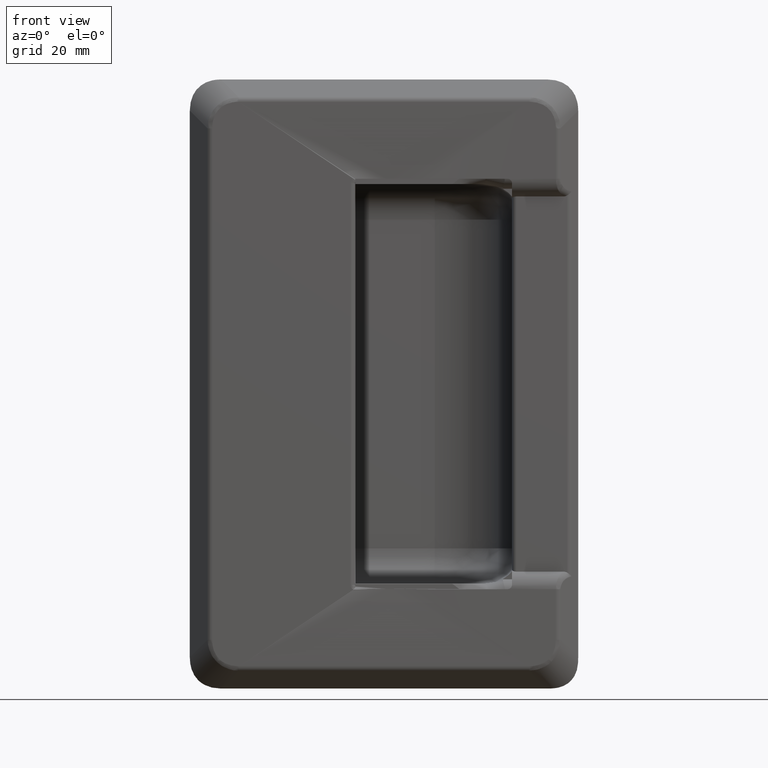
[diagram: clean part render]
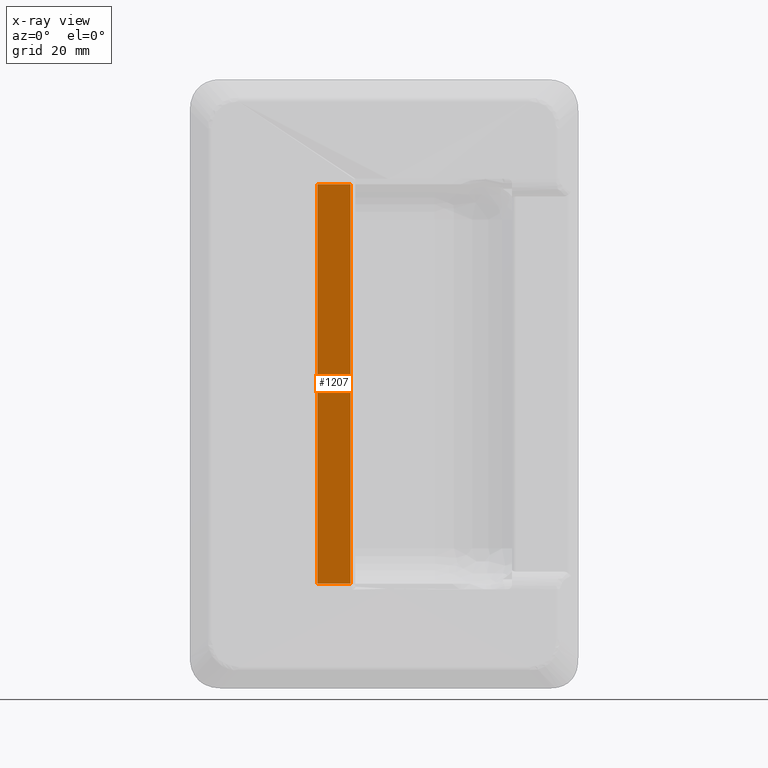
[diagram: x-ray — body ghosted, one internal face saturated and labeled with its STEP entity id]
A machine part, front view, then the same camera in x-ray: the body is ghosted and one INTERNAL B-rep face — a face not visible from any outside direction — is saturated and labeled: STEP entity #1207.
In plain terms, the highlighted planar face has unit normal (0, -1, 0).
Its self-contained STEP definition (entity closure, byte-faithful):
#1207=ADVANCED_FACE('',(#6365),#6364,.F.);
#6364=PLANE('',#10186);
#6365=FACE_OUTER_BOUND('',#10187,.T.);
#10183=CARTESIAN_POINT('',(-1.58535982507E+01,2.56000000000E+00,-5.43000000000E+01));
#10184=DIRECTION('',(0.00000000000E+00,-1.00000000000E+00,0.00000000000E+00));
#10185=DIRECTION('',(1.00000000000E+00,0.00000000000E+00,0.00000000000E+00));
#10186=AXIS2_PLACEMENT_3D('',#10183,#10184,#10185);
#10187=EDGE_LOOP('',(#13798,#13799,#13800,#13801));
#13798=ORIENTED_EDGE('',*,*,#15416,.T.);
#13799=ORIENTED_EDGE('',*,*,#15417,.T.);
#13800=ORIENTED_EDGE('',*,*,#15418,.T.);
#13801=ORIENTED_EDGE('',*,*,#15419,.T.);
#15416=EDGE_CURVE('',#23591,#23592,#23593,.T.);
#15417=EDGE_CURVE('',#23592,#23599,#23600,.T.);
#15418=EDGE_CURVE('',#23599,#23606,#23607,.T.);
#15419=EDGE_CURVE('',#23606,#23591,#23613,.T.);
#23591=VERTEX_POINT('',#30511);
#23592=VERTEX_POINT('',#30512);
#23593=LINE('',#30513,#30514);
#23599=VERTEX_POINT('',#30516);
#23600=LINE('',#30517,#30518);
#23606=VERTEX_POINT('',#30520);
#23607=LINE('',#30521,#30522);
#23613=LINE('',#30524,#30525);
#30511=CARTESIAN_POINT('',(-1.50987256825E+01,2.56000000000E+00,4.52500000000E+01));
#30512=CARTESIAN_POINT('',(-7.55000000042E+00,2.56000000000E+00,4.52500000000E+01));
#30513=CARTESIAN_POINT('',(-1.50987256825E+01,2.56000000000E+00,4.52500000000E+01));
#30514=VECTOR('',#30515,7.54872568210E+00);
#30515=DIRECTION('',(1.00000000000E+00,0.00000000000E+00,0.00000000000E+00));
#30516=CARTESIAN_POINT('',(-7.55000000042E+00,2.56000000000E+00,-4.52500000000E+01));
#30517=CARTESIAN_POINT('',(-7.55000000042E+00,2.56000000000E+00,4.52500000000E+01));
#30518=VECTOR('',#30519,9.05000000000E+01);
#30519=DIRECTION('',(0.00000000000E+00,0.00000000000E+00,-1.00000000000E+00));
#30520=CARTESIAN_POINT('',(-1.50987256825E+01,2.56000000000E+00,-4.52500000000E+01));
#30521=CARTESIAN_POINT('',(-7.55000000042E+00,2.56000000000E+00,-4.52500000000E+01));
#30522=VECTOR('',#30523,7.54872568210E+00);
#30523=DIRECTION('',(-1.00000000000E+00,0.00000000000E+00,0.00000000000E+00));
#30524=CARTESIAN_POINT('',(-1.50987256825E+01,2.56000000000E+00,-4.52500000000E+01));
#30525=VECTOR('',#30526,9.05000000000E+01);
#30526=DIRECTION('',(0.00000000000E+00,0.00000000000E+00,1.00000000000E+00));